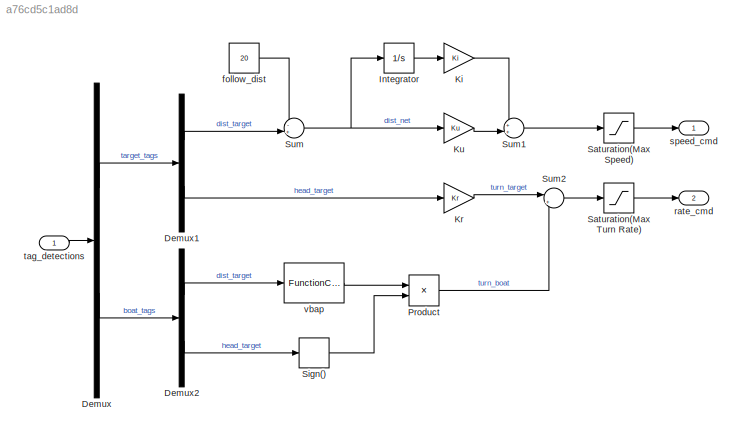
MODEL slx_a76cd5c1ad8d
KIND model
CONFIG AbsTol = auto
CONFIG EnableMultiTasking = off
CONFIG FixedStep = auto
CONFIG InitFcn = Ki = 0.05;
CONFIG MaxStep = auto
CONFIG MinStep = auto
CONFIG RelTol = 1e-3
CONFIG SampleTimeConstraint = Unconstrained
CONFIG SolverName = VariableStepAuto
CONFIG StartTime = 0.0
CONFIG StopTime = 10.0
BLOCK [Demux] Demux
  Outputs = 2
  Ports = [1, 2]
BLOCK [Demux] Demux1
  Outputs = 2
  Ports = [1, 2]
BLOCK [Demux] Demux2
  Outputs = 2
  Ports = [1, 2]
BLOCK [Integrator] Integrator
  Ports = [1, 1]
BLOCK [Gain] Ki
  Gain = Ki
BLOCK [Gain] Kr
  Gain = Kr
BLOCK [Gain] Ku
  Gain = Ku
BLOCK [Product] Product
  Ports = [2, 1]
BLOCK [Saturate] Saturation(Max Speed)
BLOCK [Saturate] Saturation(Max Turn Rate)
BLOCK [Signum] Sign()
BLOCK [Sum] Sum
  Inputs = -+|
  Ports = [2, 1]
BLOCK [Sum] Sum1
  Inputs = ++|
  Ports = [2, 1]
BLOCK [Sum] Sum2
  Inputs = |++
  Ports = [2, 1]
BLOCK [Constant] follow_dist
  Value = 20
BLOCK [Outport] rate_cmd
  Port = 2
BLOCK [Outport] speed_cmd
BLOCK [Inport] tag_detections
BLOCK [FunctionCaller] vbap
  FunctionPrototype = y = f(u)
  InputArgumentSpecifications = <Enter example>
  OutputArgumentSpecifications = <Enter example>
  Ports = [1, 1]
LINE Demux1:1 -> Sum:2
LINE Demux1:2 -> Kr:1
LINE Demux2:1 -> vbap:1
LINE Demux2:2 -> Sign():1
LINE Demux:1 -> Demux1:1
LINE Demux:2 -> Demux2:1
LINE Integrator:1 -> Ki:1
LINE Ki:1 -> Sum1:1
LINE Kr:1 -> Sum2:1
LINE Ku:1 -> Sum1:2
LINE Product:1 -> Sum2:2
LINE Saturation(Max Speed):1 -> speed_cmd:1
LINE Saturation(Max Turn Rate):1 -> rate_cmd:1
LINE Sign():1 -> Product:2
LINE Sum1:1 -> Saturation(Max Speed):1
LINE Sum2:1 -> Saturation(Max Turn Rate):1
NET Sum:1 -> Integrator:1, Ku:1
LINE follow_dist:1 -> Sum:1
LINE tag_detections:1 -> Demux:1
LINE vbap:1 -> Product:1
note: NET lines group one-source signal fan-out (src -> all destinations, sorted); 1:1 wires keep LINE
